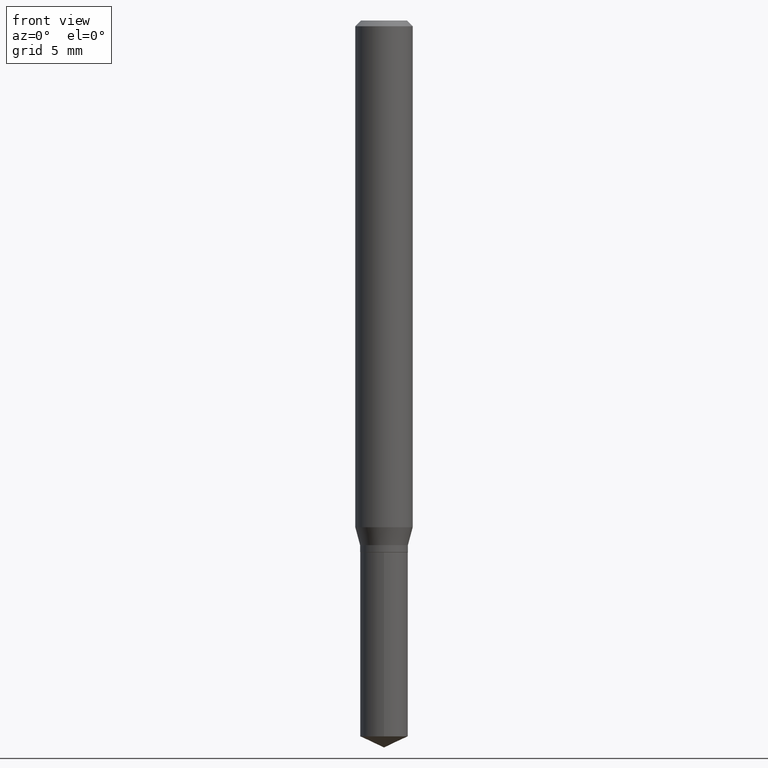
[diagram: clean part render]
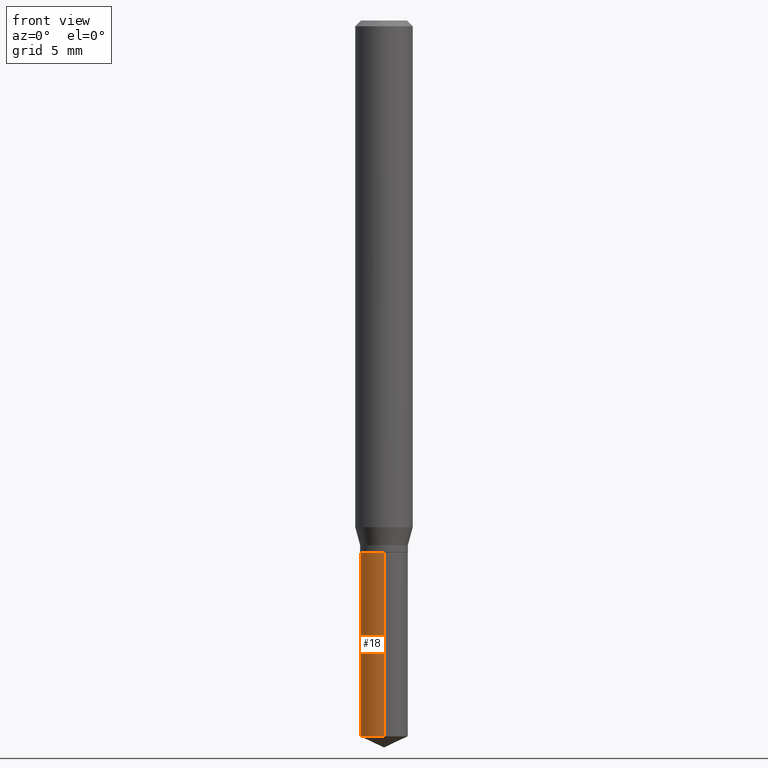
[diagram: same view with one face highlighted and labeled with its STEP entity id]
A machine part, front view. The second image highlights one B-rep face of the part: STEP entity #18.
In plain terms, the highlighted cylindrical surface (edge-blend (fillet) strip) has radius 1.2497 mm, axis along (-0, 0, 1).
Its self-contained STEP definition (entity closure, byte-faithful):
#18 = ADVANCED_FACE ( 'NONE', ( #56 ), #198, .T. ) ;
#56 = FACE_OUTER_BOUND ( 'NONE', #176, .T. ) ;
#62 = ORIENTED_EDGE ( 'NONE', *, *, #477, .T. ) ;
#66 = CARTESIAN_POINT ( 'NONE',  ( 3.602519278119375735E-29, -5.143562398791767883E-15, -1.473157663218774172 ) ) ;
#75 = ORIENTED_EDGE ( 'NONE', *, *, #459, .F. ) ;
#77 = DIRECTION ( 'NONE',  ( -2.445358326776455510E-29, 3.491639551644474585E-15, 1.000000000000000000 ) ) ;
#97 = CARTESIAN_POINT ( 'NONE',  ( 2.676565608369631794E-29, -3.821426325363822773E-15, -1.094499999999999806 ) ) ;
#110 = VECTOR ( 'NONE', #485, 39.37007874015748143 ) ;
#116 = CARTESIAN_POINT ( 'NONE',  ( 2.676565608369631794E-29, -3.821426325363822773E-15, -1.094499999999999806 ) ) ;
#129 = VERTEX_POINT ( 'NONE', #418 ) ;
#148 = CARTESIAN_POINT ( 'NONE',  ( -3.435617637421283351E-16, -0.04920000000000515628, -1.473157663218773727 ) ) ;
#157 = VECTOR ( 'NONE', #369, 39.37007874015748143 ) ;
#174 = ORIENTED_EDGE ( 'NONE', *, *, #308, .F. ) ;
#176 = EDGE_LOOP ( 'NONE', ( #75, #62, #398, #174 ) ) ;
#198 = CYLINDRICAL_SURFACE ( 'NONE', #487, 0.04920000000000000068 ) ;
#215 = VERTEX_POINT ( 'NONE', #430 ) ;
#229 = DIRECTION ( 'NONE',  ( -2.445358326776455510E-29, 3.491639551644474585E-15, 1.000000000000000000 ) ) ;
#254 = CIRCLE ( 'NONE', #362, 0.04920000000000000068 ) ;
#263 = CARTESIAN_POINT ( 'NONE',  ( 3.495870259940053373E-16, 0.04919999999999487283, -1.473157663218774394 ) ) ;
#268 = DIRECTION ( 'NONE',  ( -6.982962677686265922E-15, -1.000000000000000000, 5.552536572488340164E-15 ) ) ;
#281 = DIRECTION ( 'NONE',  ( -2.445358326776455510E-29, 3.491639551644474585E-15, 1.000000000000000000 ) ) ;
#290 = LINE ( 'NONE', #478, #110 ) ;
#308 = EDGE_CURVE ( 'NONE', #215, #129, #416, .T. ) ;
#318 = VERTEX_POINT ( 'NONE', #148 ) ;
#324 = LINE ( 'NONE', #330, #157 ) ;
#330 = CARTESIAN_POINT ( 'NONE',  ( -3.435617637421375056E-16, -0.04920000000000382401, -1.094499999999999806 ) ) ;
#340 = DIRECTION ( 'NONE',  ( -6.982962677686265922E-15, -1.000000000000000000, 2.776268286244170082E-15 ) ) ;
#355 = VERTEX_POINT ( 'NONE', #263 ) ;
#362 = AXIS2_PLACEMENT_3D ( 'NONE', #66, #229, #268 ) ;
#369 = DIRECTION ( 'NONE',  ( -2.445358326776455790E-29, 3.491639551644474585E-15, 1.000000000000000000 ) ) ;
#398 = ORIENTED_EDGE ( 'NONE', *, *, #483, .T. ) ;
#416 = CIRCLE ( 'NONE', #432, 0.04920000000000000068 ) ;
#418 = CARTESIAN_POINT ( 'NONE',  ( -3.435617637421375056E-16, -0.04920000000000382401, -1.094499999999999806 ) ) ;
#430 = CARTESIAN_POINT ( 'NONE',  ( 3.495870259940053373E-16, 0.04919999999999617735, -1.094500000000000028 ) ) ;
#432 = AXIS2_PLACEMENT_3D ( 'NONE', #97, #281, #460 ) ;
#459 = EDGE_CURVE ( 'NONE', #355, #215, #290, .T. ) ;
#460 = DIRECTION ( 'NONE',  ( -6.982962677686265922E-15, -1.000000000000000000, 2.776268286244170082E-15 ) ) ;
#477 = EDGE_CURVE ( 'NONE', #355, #318, #254, .T. ) ;
#478 = CARTESIAN_POINT ( 'NONE',  ( 3.495870259939959696E-16, 0.04919999999999617735, -1.094500000000000028 ) ) ;
#483 = EDGE_CURVE ( 'NONE', #318, #129, #324, .T. ) ;
#485 = DIRECTION ( 'NONE',  ( -2.445358326776455790E-29, 3.491639551644474585E-15, 1.000000000000000000 ) ) ;
#487 = AXIS2_PLACEMENT_3D ( 'NONE', #116, #77, #340 ) ;